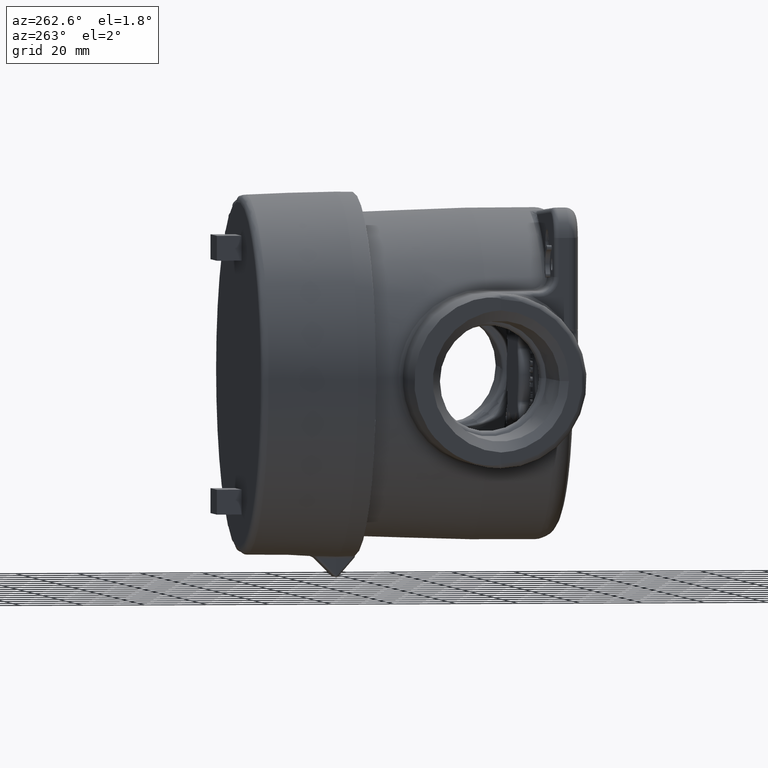
[diagram: clean part render]
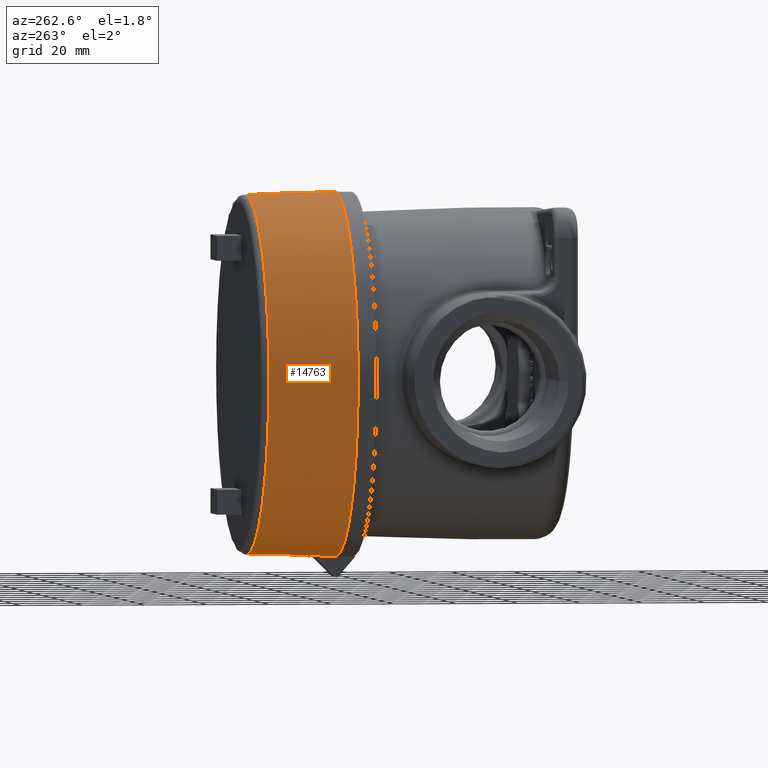
[diagram: same view with one face highlighted and labeled with its STEP entity id]
A machine part, auxiliary view. The second image highlights one B-rep face of the part: STEP entity #14763.
In plain terms, the highlighted conical surface has half-angle 1.5 deg.
Its self-contained STEP definition (entity closure, byte-faithful):
#172=CONICAL_SURFACE('',#15753,2.291875,0.0261799387799149);
#1397=LINE('',#53043,#2656);
#2656=VECTOR('',#18826,2.291875);
#4032=FACE_OUTER_BOUND('',#4923,.T.);
#4923=EDGE_LOOP('',(#13472,#13473,#13474,#13475,#13476,#13477,#13478,#13479));
#5478=B_SPLINE_CURVE_WITH_KNOTS('',3,(#53025,#53026,#53027,#53028,#53029,
#53030,#53031,#53032,#53033,#53034),.UNSPECIFIED.,.F.,.F.,(4,2,2,2,4),(0.,
0.25,0.5,0.75,1.),.UNSPECIFIED.);
#5479=B_SPLINE_CURVE_WITH_KNOTS('',3,(#53036,#53037,#53038,#53039),
 .UNSPECIFIED.,.F.,.F.,(4,4),(0.,1.),.UNSPECIFIED.);
#5480=B_SPLINE_CURVE_WITH_KNOTS('',3,(#53047,#53048,#53049,#53050),
 .UNSPECIFIED.,.F.,.F.,(4,4),(0.,1.),.UNSPECIFIED.);
#5797=CIRCLE('',#15754,2.291875);
#5798=CIRCLE('',#15755,2.2623515756551);
#5799=CIRCLE('',#15756,2.291875);
#7154=VERTEX_POINT('',#53023);
#7155=VERTEX_POINT('',#53024);
#7156=VERTEX_POINT('',#53035);
#7157=VERTEX_POINT('',#53040);
#7158=VERTEX_POINT('',#53042);
#7159=VERTEX_POINT('',#53045);
#9272=EDGE_CURVE('',#7154,#7155,#5478,.T.);
#9273=EDGE_CURVE('',#7155,#7156,#5479,.T.);
#9274=EDGE_CURVE('',#7156,#7157,#5797,.F.);
#9275=EDGE_CURVE('',#7157,#7158,#1397,.T.);
#9276=EDGE_CURVE('',#7158,#7158,#5798,.T.);
#9277=EDGE_CURVE('',#7157,#7159,#5799,.F.);
#9278=EDGE_CURVE('',#7159,#7154,#5480,.T.);
#13472=ORIENTED_EDGE('',*,*,#9272,.T.);
#13473=ORIENTED_EDGE('',*,*,#9273,.T.);
#13474=ORIENTED_EDGE('',*,*,#9274,.T.);
#13475=ORIENTED_EDGE('',*,*,#9275,.T.);
#13476=ORIENTED_EDGE('',*,*,#9276,.T.);
#13477=ORIENTED_EDGE('',*,*,#9275,.F.);
#13478=ORIENTED_EDGE('',*,*,#9277,.T.);
#13479=ORIENTED_EDGE('',*,*,#9278,.T.);
#14763=ADVANCED_FACE('',(#4032),#172,.T.);
#15753=AXIS2_PLACEMENT_3D('',#53022,#18822,#18823);
#15754=AXIS2_PLACEMENT_3D('',#53041,#18824,#18825);
#15755=AXIS2_PLACEMENT_3D('',#53044,#18827,#18828);
#15756=AXIS2_PLACEMENT_3D('',#53046,#18829,#18830);
#18822=DIRECTION('center_axis',(0.,0.,-1.));
#18823=DIRECTION('ref_axis',(1.,0.,0.));
#18824=DIRECTION('center_axis',(0.,0.,-1.));
#18825=DIRECTION('ref_axis',(0.0941577830285561,-0.995557287098612,0.));
#18826=DIRECTION('',(0.0261769483078732,-3.20575159566826E-18,0.999657324975557));
#18827=DIRECTION('center_axis',(0.,0.,-1.));
#18828=DIRECTION('ref_axis',(-1.,0.,0.));
#18829=DIRECTION('center_axis',(0.,0.,-1.));
#18830=DIRECTION('ref_axis',(0.0941577830285561,-0.995557287098612,0.));
#53022=CARTESIAN_POINT('Origin',(0.,0.,0.25));
#53023=CARTESIAN_POINT('',(-0.207316653940802,-2.27385742475142,0.577893423970053));
#53024=CARTESIAN_POINT('',(0.207316653940807,-2.27385742475143,0.577893423969807));
#53025=CARTESIAN_POINT('Ctrl Pts',(-0.207316653940836,-2.27385742475142,
0.577893423969994));
#53026=CARTESIAN_POINT('Ctrl Pts',(-0.172952527067344,-2.27707885298468,
0.574534791510589));
#53027=CARTESIAN_POINT('Ctrl Pts',(-0.138260175190087,-2.2795177954298,
0.571991986747983));
#53028=CARTESIAN_POINT('Ctrl Pts',(-0.0689453056210058,-2.28275433235185,
0.568617626067141));
#53029=CARTESIAN_POINT('Ctrl Pts',(-0.0342320933344148,-2.28356186731145,
0.567775706263139));
#53030=CARTESIAN_POINT('Ctrl Pts',(0.0353066028894556,-2.28354504765363,
0.567793242123084));
#53031=CARTESIAN_POINT('Ctrl Pts',(0.0700813047138276,-2.28271585385408,
0.568657743049717));
#53032=CARTESIAN_POINT('Ctrl Pts',(0.139021210952633,-2.27946728881877,
0.572044644192545));
#53033=CARTESIAN_POINT('Ctrl Pts',(0.173274371978405,-2.27704868197853,
0.574566247533586));
#53034=CARTESIAN_POINT('Ctrl Pts',(0.207316653940815,-2.27385742475142,
0.577893423969993));
#53035=CARTESIAN_POINT('',(0.215797868978566,-2.28169285736913,0.25));
#53036=CARTESIAN_POINT('Ctrl Pts',(0.207316653940786,-2.27385742475142,
0.577893423970236));
#53037=CARTESIAN_POINT('Ctrl Pts',(0.210143593189373,-2.27647361369759,
0.468595717357628));
#53038=CARTESIAN_POINT('Ctrl Pts',(0.212970665364124,-2.27908540998569,
0.359297908811707));
#53039=CARTESIAN_POINT('Ctrl Pts',(0.215797868983298,-2.28169285736868,
0.25));
#53040=CARTESIAN_POINT('',(-2.291875,2.80673738279584E-16,0.25));
#53041=CARTESIAN_POINT('Origin',(1.31128703695885E-16,6.99353086378051E-16,
0.25));
#53042=CARTESIAN_POINT('',(-2.2623515756551,0.,1.37745408890386));
#53043=CARTESIAN_POINT('',(-2.291875,2.80673738279584E-16,0.25));
#53044=CARTESIAN_POINT('Origin',(0.,0.,1.37745408890386));
#53045=CARTESIAN_POINT('',(-0.215797868978565,-2.28169285736913,0.25));
#53046=CARTESIAN_POINT('Origin',(1.31128703695885E-16,6.99353086378051E-16,
0.25));
#53047=CARTESIAN_POINT('Ctrl Pts',(-0.215797868983298,-2.28169285736868,
0.25));
#53048=CARTESIAN_POINT('Ctrl Pts',(-0.212970665364122,-2.27908540998569,
0.359297908811786));
#53049=CARTESIAN_POINT('Ctrl Pts',(-0.210143593189375,-2.27647361369759,
0.468595717357547));
#53050=CARTESIAN_POINT('Ctrl Pts',(-0.207316653940786,-2.27385742475142,
0.577893423970235));